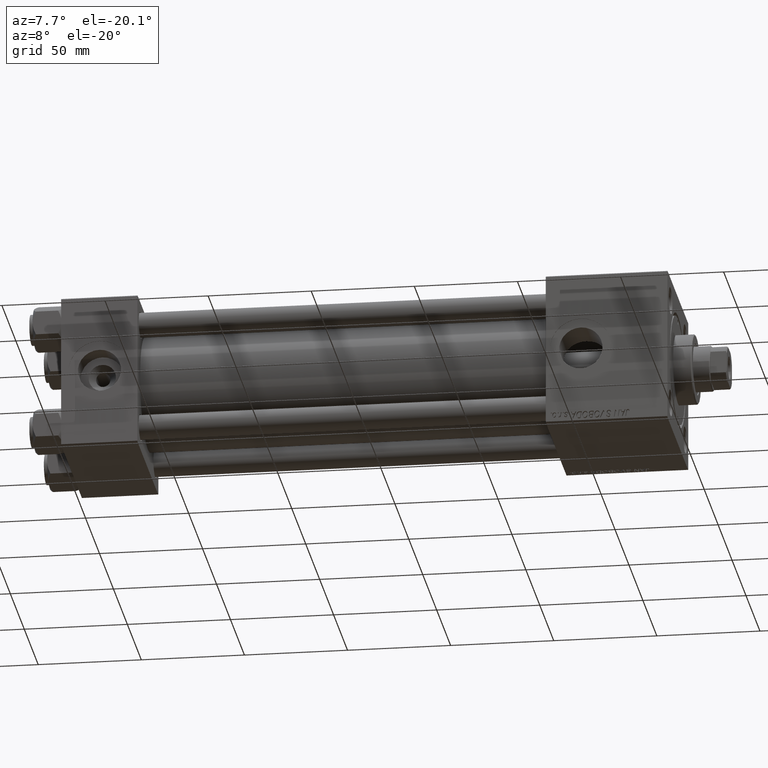
[diagram: clean part render]
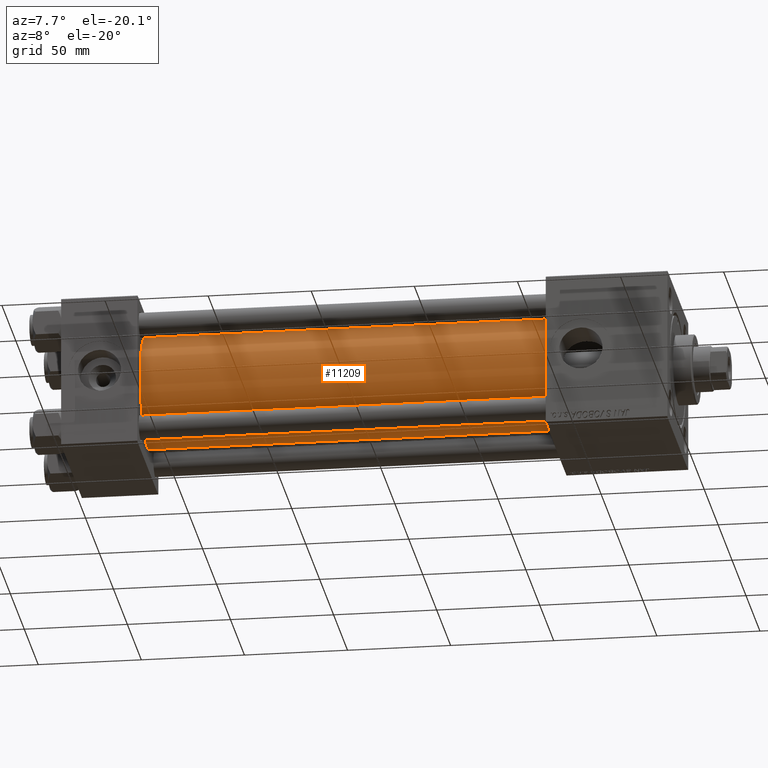
[diagram: same view with one face highlighted and labeled with its STEP entity id]
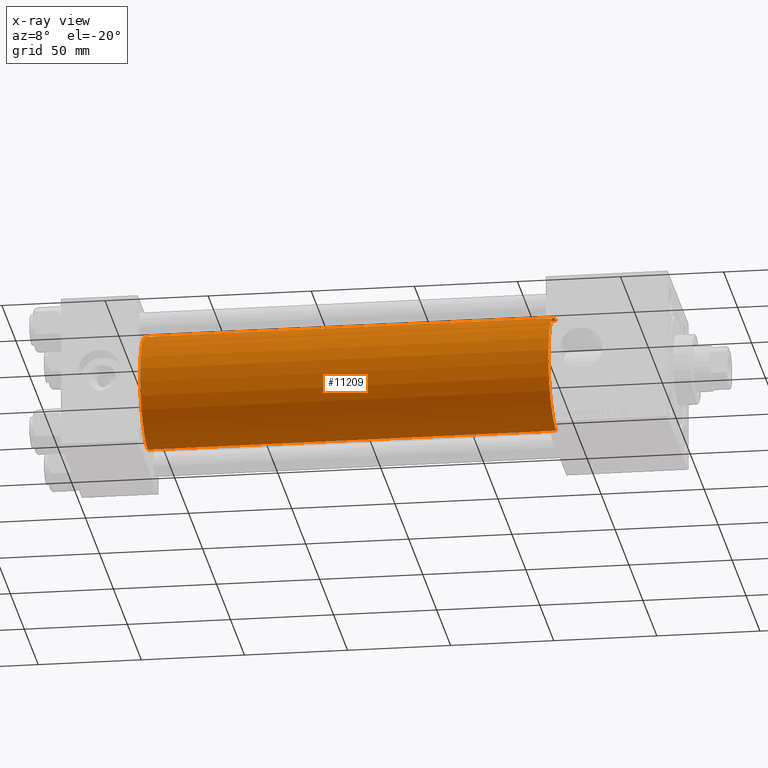
[diagram: x-ray of the same camera — body ghosted, the highlighted face saturated]
A machine part, auxiliary view. The second image highlights one B-rep face of the part: STEP entity #11209.
The next image is the same camera in x-ray: the body ghosted, the highlighted face saturated — about 0% of this face is hidden behind the body in this view.
In plain terms, the highlighted cylindrical surface (partial cylindrical patch) has radius 28 mm, axis along (-1, -0, -0).
Its self-contained STEP definition (entity closure, byte-faithful):
#2094 = EDGE_CURVE ( 'NONE', #40976, #24663, #16696, .T. ) ;
#2513 = CARTESIAN_POINT ( 'NONE',  ( 235.0000000000000284, -2.602085213965210642E-15, 0.000000000000000000 ) ) ;
#4434 = AXIS2_PLACEMENT_3D ( 'NONE', #2513, #18081, #33605 ) ;
#5316 = EDGE_CURVE ( 'NONE', #15810, #24663, #5669, .T. ) ;
#5426 = DIRECTION ( 'NONE',  ( -1.000000000000000000, -0.000000000000000000, -0.000000000000000000 ) ) ;
#5669 = LINE ( 'NONE', #44386, #18465 ) ;
#7851 = FACE_OUTER_BOUND ( 'NONE', #22295, .T. ) ;
#8083 = CARTESIAN_POINT ( 'NONE',  ( 37.00000000000000711, 8.269258236473784371E-16, -28.00000000000000000 ) ) ;
#9645 = ORIENTED_EDGE ( 'NONE', *, *, #5316, .F. ) ;
#9794 = LINE ( 'NONE', #48238, #16185 ) ;
#11141 = EDGE_CURVE ( 'NONE', #21448, #40976, #9794, .T. ) ;
#11166 = DIRECTION ( 'NONE',  ( -1.000000000000000000, -0.000000000000000000, -0.000000000000000000 ) ) ;
#11209 = ADVANCED_FACE ( 'NONE', ( #7851 ), #49590, .T. ) ;
#11785 = ORIENTED_EDGE ( 'NONE', *, *, #32734, .F. ) ;
#11857 = CARTESIAN_POINT ( 'NONE',  ( 37.00000000000000711, -2.602085213965210642E-15, 0.000000000000000000 ) ) ;
#14142 = DIRECTION ( 'NONE',  ( -1.000000000000000000, -0.000000000000000000, -0.000000000000000000 ) ) ;
#14936 = DIRECTION ( 'NONE',  ( 0.000000000000000000, 0.000000000000000000, 1.000000000000000000 ) ) ;
#15810 = VERTEX_POINT ( 'NONE', #33555 ) ;
#16185 = VECTOR ( 'NONE', #14142, 1000.000000000000000 ) ;
#16696 = CIRCLE ( 'NONE', #43510, 28.00000000000000000 ) ;
#18081 = DIRECTION ( 'NONE',  ( 1.000000000000000000, 0.000000000000000000, 0.000000000000000000 ) ) ;
#18465 = VECTOR ( 'NONE', #5426, 1000.000000000000000 ) ;
#21448 = VERTEX_POINT ( 'NONE', #45005 ) ;
#21919 = AXIS2_PLACEMENT_3D ( 'NONE', #30787, #11166, #38664 ) ;
#22295 = EDGE_LOOP ( 'NONE', ( #9645, #11785, #24694, #26758 ) ) ;
#24663 = VERTEX_POINT ( 'NONE', #8083 ) ;
#24694 = ORIENTED_EDGE ( 'NONE', *, *, #11141, .T. ) ;
#26660 = DIRECTION ( 'NONE',  ( 1.000000000000000000, -0.000000000000000000, 0.000000000000000000 ) ) ;
#26758 = ORIENTED_EDGE ( 'NONE', *, *, #2094, .T. ) ;
#30787 = CARTESIAN_POINT ( 'NONE',  ( 235.0000000000000284, -2.602085213965210642E-15, 0.000000000000000000 ) ) ;
#32734 = EDGE_CURVE ( 'NONE', #21448, #15810, #47648, .T. ) ;
#33555 = CARTESIAN_POINT ( 'NONE',  ( 235.0000000000000284, 8.269258236473784371E-16, -28.00000000000000000 ) ) ;
#33605 = DIRECTION ( 'NONE',  ( 0.000000000000000000, 0.000000000000000000, -1.000000000000000000 ) ) ;
#35709 = CARTESIAN_POINT ( 'NONE',  ( 37.00000000000000711, -2.602085213965210642E-15, 28.00000000000000000 ) ) ;
#38664 = DIRECTION ( 'NONE',  ( 0.000000000000000000, 0.000000000000000000, 1.000000000000000000 ) ) ;
#40976 = VERTEX_POINT ( 'NONE', #35709 ) ;
#43510 = AXIS2_PLACEMENT_3D ( 'NONE', #11857, #26660, #14936 ) ;
#44386 = CARTESIAN_POINT ( 'NONE',  ( 235.0000000000000284, 8.269258236473784371E-16, -28.00000000000000000 ) ) ;
#45005 = CARTESIAN_POINT ( 'NONE',  ( 235.0000000000000284, -2.602085213965210642E-15, 28.00000000000000000 ) ) ;
#47648 = CIRCLE ( 'NONE', #4434, 28.00000000000000000 ) ;
#48238 = CARTESIAN_POINT ( 'NONE',  ( 235.0000000000000284, -2.602085213965210642E-15, 28.00000000000000000 ) ) ;
#49590 = CYLINDRICAL_SURFACE ( 'NONE', #21919, 28.00000000000000000 ) ;